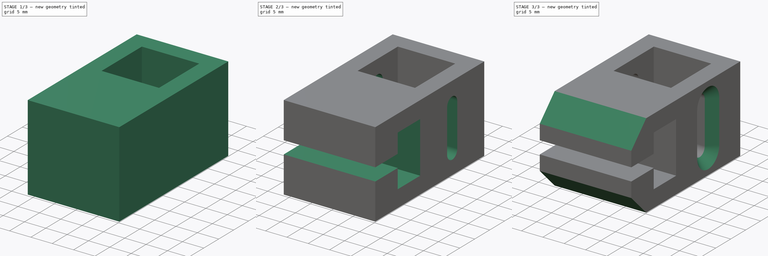
[diagram: build sequence overview — one tinted view per stage of 3, left to right]
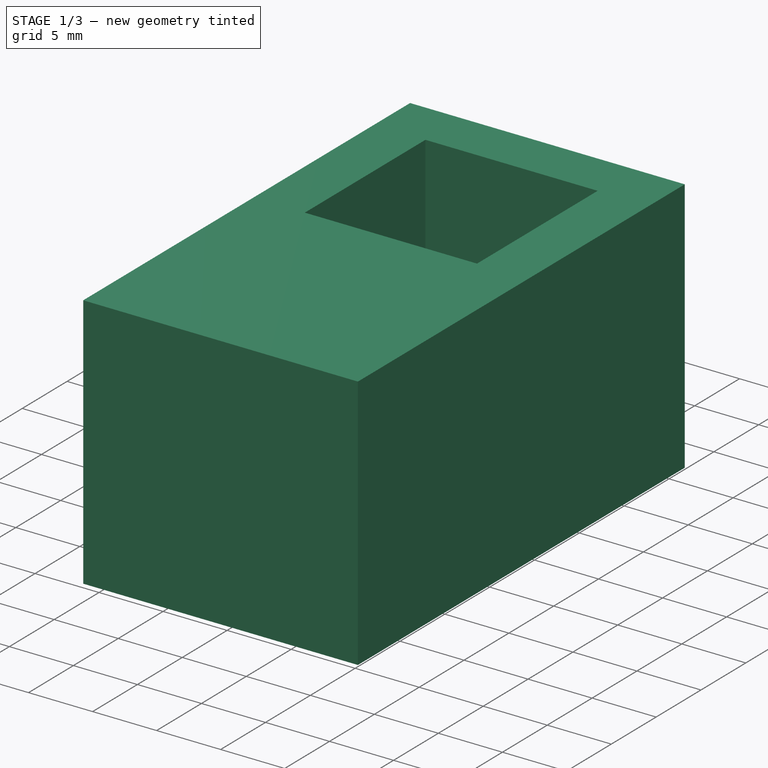
[diagram: stage 1 of 3 — iso view after this stage's code; geometry added in this stage tinted green]
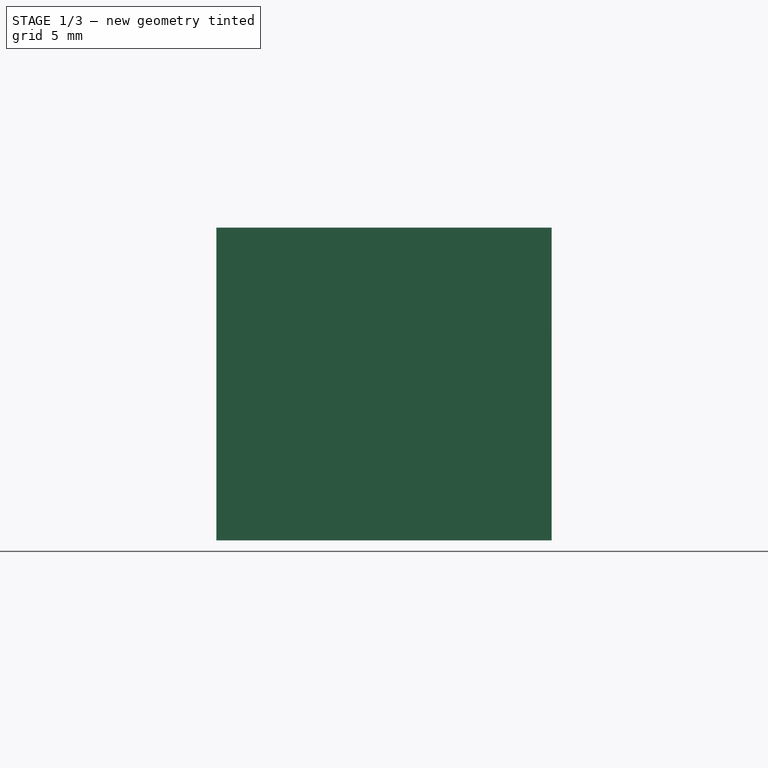
[diagram: stage 1 of 3 — front view after this stage's code; geometry added in this stage tinted green]
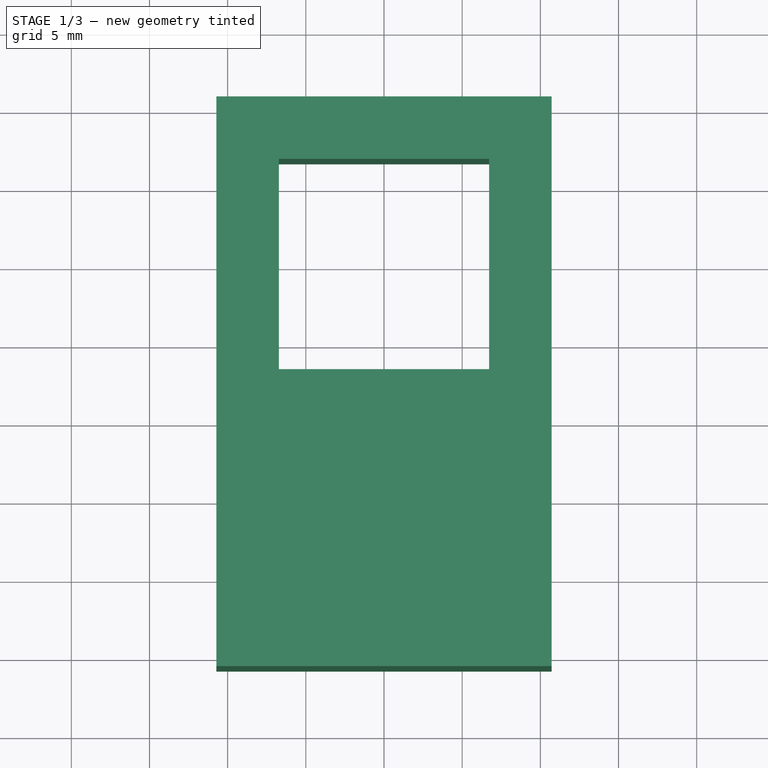
[diagram: stage 1 of 3 — top view after this stage's code; geometry added in this stage tinted green]
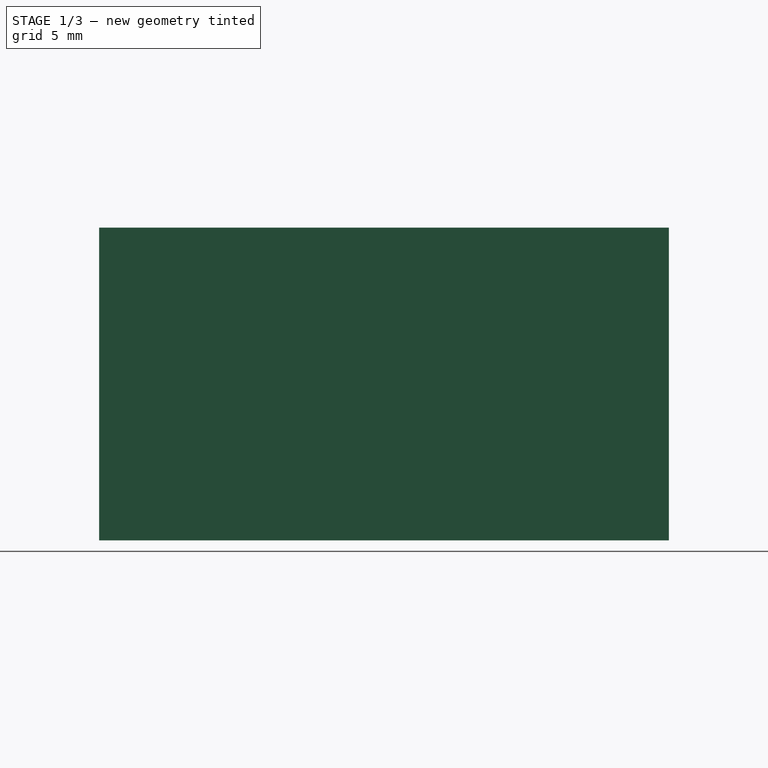
[diagram: stage 1 of 3 — right view after this stage's code; geometry added in this stage tinted green]
FCSTD DOCUMENT  (FreeCAD 0.17R13634 (Git))
Label: ElasticSlider V1
License: All rights reserved
LicenseURL: http://en.wikipedia.org/wiki/All_rights_reserved
objects: Sketcher::SketchObject×4, PartDesign::Pad×2, PartDesign::Pocket×2, PartDesign::Chamfer×2, PartDesign::Body×1
note: 15 computed .brp shape members not serialized (recipe doc carries the construction recipe); baked Part::Feature solids carry a one-line shape summary decoded from their .brp

FEATURE [Sketcher::SketchObject] Sketch  label="Tube"
  MapMode = 5
  Support = -> [XY_Plane]
  sketch-geometry (8):
    g0: LineSegment StartX=-10.725 StartY=10.725 StartZ=0 EndX=10.725 EndY=10.725 EndZ=0
    g1: LineSegment StartX=10.725 StartY=10.725 StartZ=0 EndX=10.725 EndY=-10.725 EndZ=0
    g2: LineSegment StartX=10.725 StartY=-10.725 StartZ=0 EndX=-10.725 EndY=-10.725 EndZ=0
    g3: LineSegment StartX=-10.725 StartY=-10.725 StartZ=0 EndX=-10.725 EndY=10.725 EndZ=0
    g4: LineSegment StartX=-6.725 StartY=6.725 StartZ=0 EndX=6.725 EndY=6.725 EndZ=0
    g5: LineSegment StartX=6.725 StartY=6.725 StartZ=0 EndX=6.725 EndY=-6.725 EndZ=0
    g6: LineSegment StartX=6.725 StartY=-6.725 StartZ=0 EndX=-6.725 EndY=-6.725 EndZ=0
    g7: LineSegment StartX=-6.725 StartY=-6.725 StartZ=0 EndX=-6.725 EndY=6.725 EndZ=0
  constraints (24):
    c: Coincident(g0,g1)
    c: Coincident(g1,g2)
    c: Coincident(g2,g3)
    c: Coincident(g3,g0)
    c: Horizontal(g0)
    c: Horizontal(g2)
    c: Vertical(g1)
    c: Vertical(g3)
    c: Coincident(g4,g5)
    c: Coincident(g5,g6)
    c: Coincident(g6,g7)
    c: Coincident(g7,g4)
    c: Horizontal(g4)
    c: Horizontal(g6)
    c: Vertical(g5)
    c: Vertical(g7)
    c: Symmetric(g0,g0,g-2)
    c: Symmetric(g0,g1,g-1)
    c: Equal(g0,g1)
    c: Symmetric(g4,g4,g-2)
    c: Symmetric(g4,g5,g-1)
    c: Equal(g5,g6)
    c: Distance(g4) = 13.45
    c: DistanceX(g4,g0) = 4
FEATURE [PartDesign::Pad] Pad
  Length = 20
  Length2 = 100
  Profile = -> Sketch
  Type = 0
FEATURE [Sketcher::SketchObject] Sketch001  label="AnchorBase"
  ExternalGeometry = -> [Pad]
  MapMode = 5
  Placement = pos=(0,-10.725,0) rot=(1,0,0;1.5708rad)
  Support = -> [Pad]
  sketch-geometry (7):
    g0: LineSegment [constr] StartX=-10.725 StartY=20 StartZ=0 EndX=10.725 EndY=0 EndZ=0
    g1: LineSegment [constr] StartX=10.725 StartY=20 StartZ=0 EndX=-10.725 EndY=0 EndZ=0
    g2: GeomPoint X=0 Y=10 Z=0
    g3: LineSegment StartX=-10.725 StartY=20 StartZ=0 EndX=10.725 EndY=20 EndZ=0
    g4: LineSegment StartX=10.725 StartY=20 StartZ=0 EndX=10.725 EndY=0 EndZ=0
    g5: LineSegment StartX=10.725 StartY=0 StartZ=0 EndX=-10.725 EndY=0 EndZ=0
    g6: LineSegment StartX=-10.725 StartY=0 StartZ=0 EndX=-10.725 EndY=20 EndZ=0
  constraints (16):
    c: Coincident(g0,g-3)
    c: Coincident(g0,g-4)
    c: Coincident(g1,g-4)
    c: Coincident(g1,g-3)
    c: PointOnObject(g2,g1)
    c: PointOnObject(g2,g0)
    c: Coincident(g3,g4)
    c: Coincident(g4,g5)
    c: Coincident(g5,g6)
    c: Coincident(g6,g3)
    c: Horizontal(g3)
    c: Horizontal(g5)
    c: Vertical(g4)
    c: Vertical(g6)
    c: Coincident(g3,g0)
    c: Coincident(g4,g0)
FEATURE [PartDesign::Pad] Pad001
  BaseFeature = -> Pad
  Length = 15
  Length2 = 100
  Profile = -> Sketch001
  Type = 0
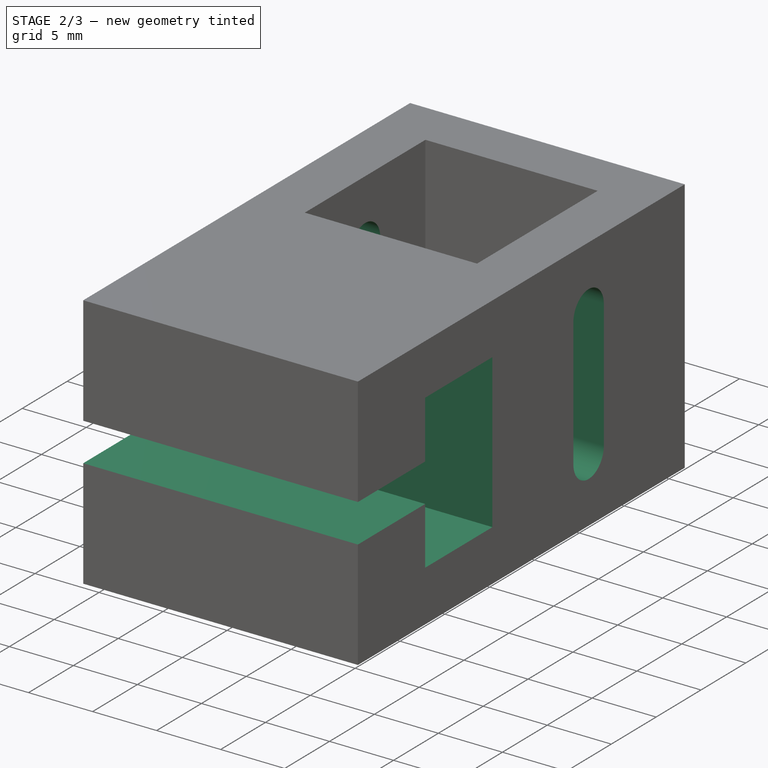
[diagram: stage 2 of 3 — iso view after this stage's code; geometry added in this stage tinted green]
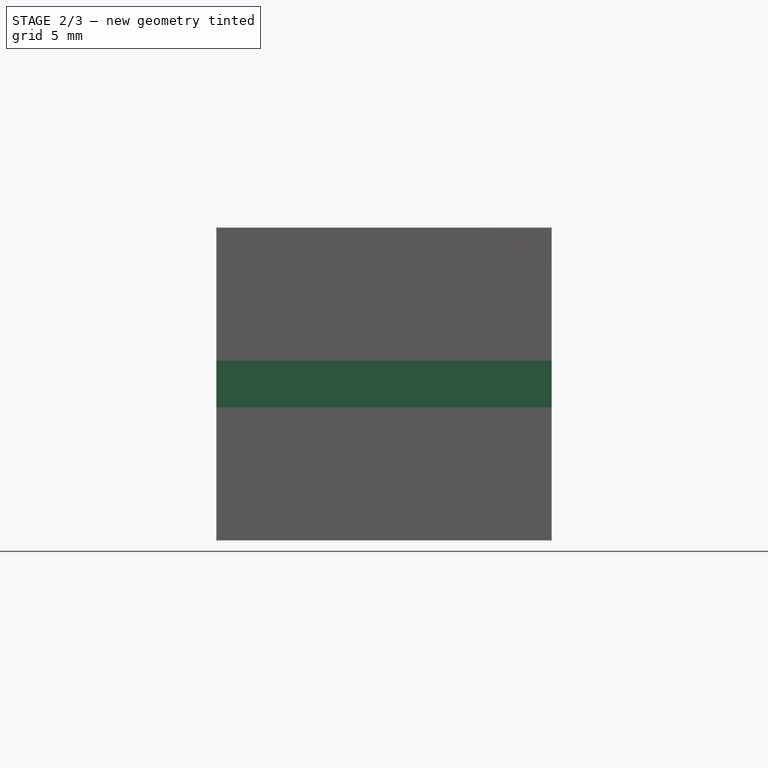
[diagram: stage 2 of 3 — front view after this stage's code; geometry added in this stage tinted green]
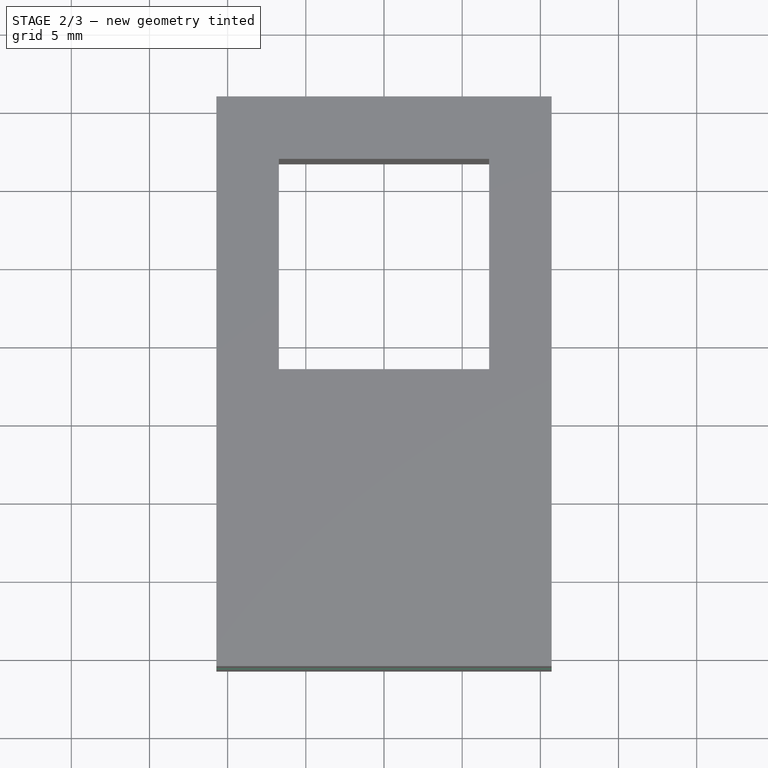
[diagram: stage 2 of 3 — top view after this stage's code; geometry added in this stage tinted green]
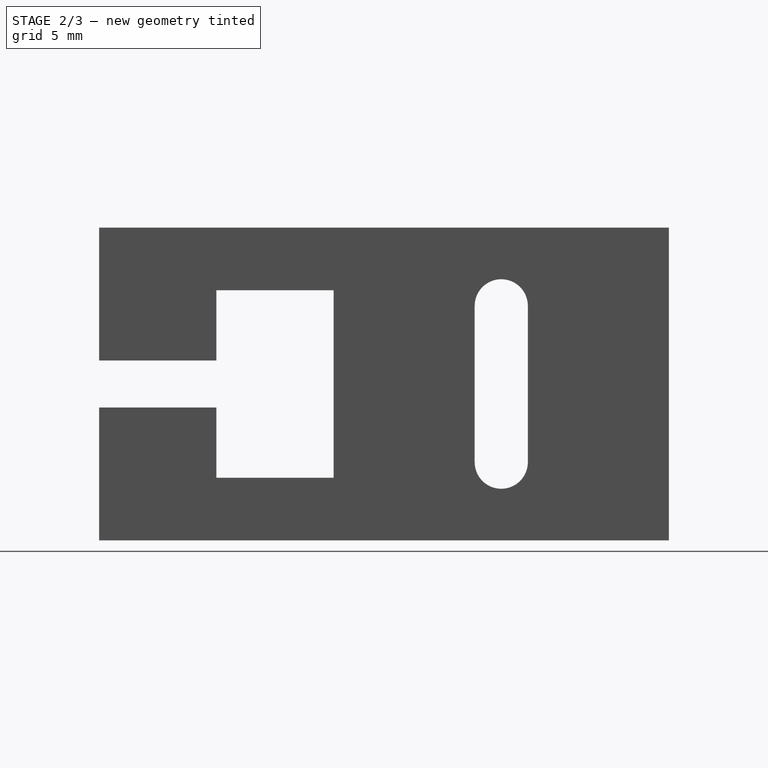
[diagram: stage 2 of 3 — right view after this stage's code; geometry added in this stage tinted green]
FEATURE [Sketcher::SketchObject] Sketch002  label="ElasticSlot"
  ExternalGeometry = -> [Pad001]
  MapMode = 5
  Placement = pos=(-10.725,0,0) rot=(0.57735,-0.57735,-0.57735;2.0944rad)
  Support = -> [Pad001]
  sketch-geometry (10):
    g0: LineSegment StartX=18.225 StartY=11.5 StartZ=0 EndX=25.725 EndY=11.5 EndZ=0
    g1: LineSegment StartX=25.725 StartY=11.5 StartZ=0 EndX=25.725 EndY=8.5 EndZ=0
    g2: LineSegment StartX=25.725 StartY=8.5 StartZ=0 EndX=18.225 EndY=8.5 EndZ=0
    g3: LineSegment [constr] StartX=18.225 StartY=8.5 StartZ=0 EndX=10.725 EndY=0 EndZ=0
    g4: LineSegment [constr] StartX=18.225 StartY=11.5 StartZ=0 EndX=10.725 EndY=20 EndZ=0
    g5: LineSegment StartX=18.225 StartY=11.5 StartZ=0 EndX=18.225 EndY=16 EndZ=0
    g6: LineSegment StartX=18.225 StartY=16 StartZ=0 EndX=10.725 EndY=16 EndZ=0
    g7: LineSegment StartX=10.725 StartY=16 StartZ=0 EndX=10.725 EndY=4 EndZ=0
    g8: LineSegment StartX=10.725 StartY=4 StartZ=0 EndX=18.225 EndY=4 EndZ=0
    g9: LineSegment StartX=18.225 StartY=4 StartZ=0 EndX=18.225 EndY=8.5 EndZ=0
  constraints (28):
    c: Coincident(g0,g1)
    c: Coincident(g1,g2)
    c: Horizontal(g0)
    c: Horizontal(g2)
    c: Vertical(g1)
    c: PointOnObject(g1,g-5)
    c: Coincident(g3,g2)
    c: Coincident(g3,g-4)
    c: Coincident(g4,g0)
    c: Coincident(g4,g-4)
    c: Equal(g3,g4)
    c: Distance(g1) = 3
    c: DistanceX(g2,g0) = 0
    c: Coincident(g0,g5)
    c: Vertical(g5)
    c: Coincident(g5,g6)
    c: PointOnObject(g6,g-4)
    c: Horizontal(g6)
    c: Coincident(g6,g7)
    c: Vertical(g7)
    c: Coincident(g7,g8)
    c: Horizontal(g8)
    c: Coincident(g8,g9)
    c: Coincident(g9,g2)
    c: Vertical(g9)
    c: Equal(g9,g5)
    c: DistanceY(g6,g4) = 4
    c: DistanceX(g5,g-5) = 7.5
FEATURE [PartDesign::Pocket] Pocket
  BaseFeature = -> Pad001
  Length = 5
  Length2 = 100
  Profile = -> Sketch002
  Type = 1
FEATURE [Sketcher::SketchObject] Sketch003  label="SetScrewSlot"
  ExternalGeometry = -> [Pocket]
  MapMode = 5
  Placement = pos=(-10.725,0,0) rot=(0.57735,-0.57735,-0.57735;2.0944rad)
  Support = -> [Pocket]
  sketch-geometry (6):
    g0: ArcOfCircle CenterX=0 CenterY=15 CenterZ=0 NormalX=0 NormalY=0 NormalZ=1 AngleXU=0 Radius=1.7 StartAngle=0 EndAngle=3.14159
    g1: ArcOfCircle CenterX=0 CenterY=5 CenterZ=0 NormalX=0 NormalY=0 NormalZ=1 AngleXU=0 Radius=1.7 StartAngle=3.14159 EndAngle=6.28319
    g2: LineSegment StartX=-1.7 StartY=15 StartZ=0 EndX=-1.7 EndY=5 EndZ=0
    g3: LineSegment StartX=1.7 StartY=15 StartZ=0 EndX=1.7 EndY=5 EndZ=0
    g4: LineSegment [constr] StartX=0 StartY=5 StartZ=0 EndX=10.725 EndY=0 EndZ=0
    g5: LineSegment [constr] StartX=10.725 StartY=20 StartZ=0 EndX=0 EndY=15 EndZ=0
  constraints (14):
    c: Tangent(g0,g3) = 1.5708
    c: Tangent(g0,g2) = -1.5708
    c: Tangent(g2,g1) = -1.5708
    c: Tangent(g3,g1) = 1.5708
    c: Vertical(g2)
    c: Equal(g0,g1)
    c: PointOnObject(g0,g-2)
    c: Coincident(g4,g1)
    c: Coincident(g4,g-4)
    c: Coincident(g5,g-3)
    c: Coincident(g5,g0)
    c: Equal(g4,g5)
    c: Radius(g1) = 1.7
    c: Distance(g1,g0) = 10
FEATURE [PartDesign::Pocket] Pocket001
  BaseFeature = -> Pocket
  Length = 5
  Length2 = 100
  Profile = -> Sketch003
  Type = 1
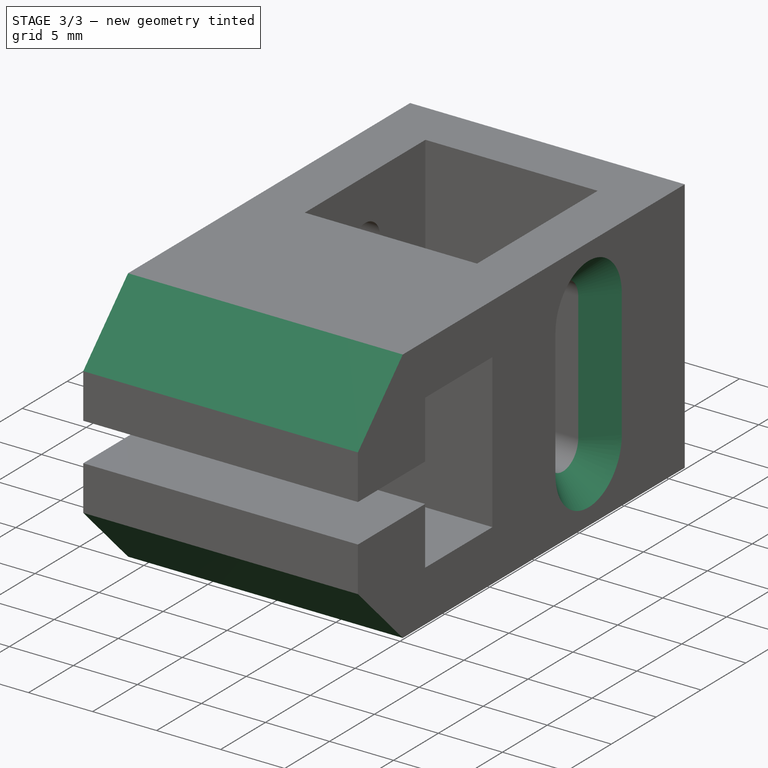
[diagram: stage 3 of 3 — iso view after this stage's code; geometry added in this stage tinted green]
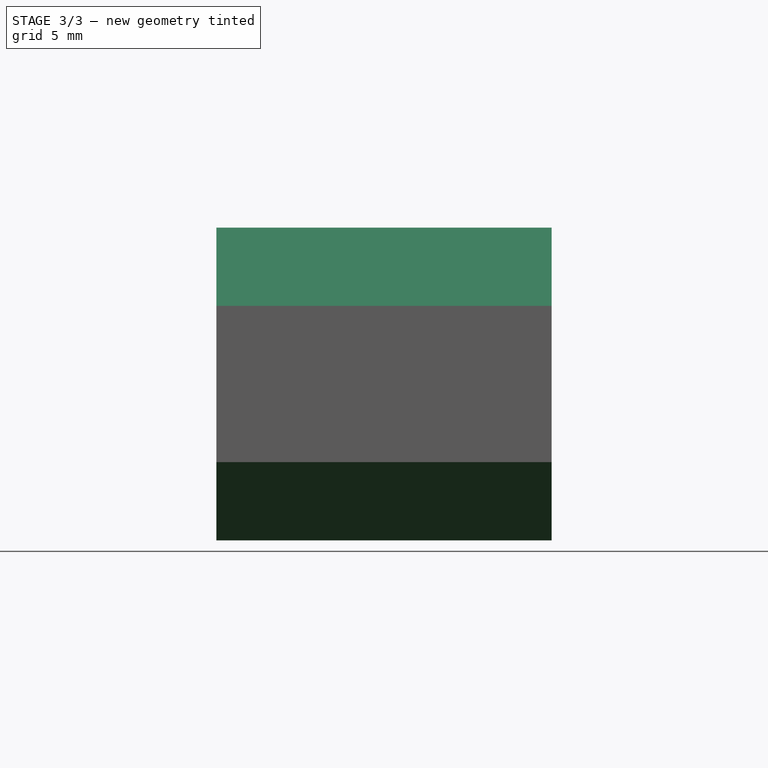
[diagram: stage 3 of 3 — front view after this stage's code; geometry added in this stage tinted green]
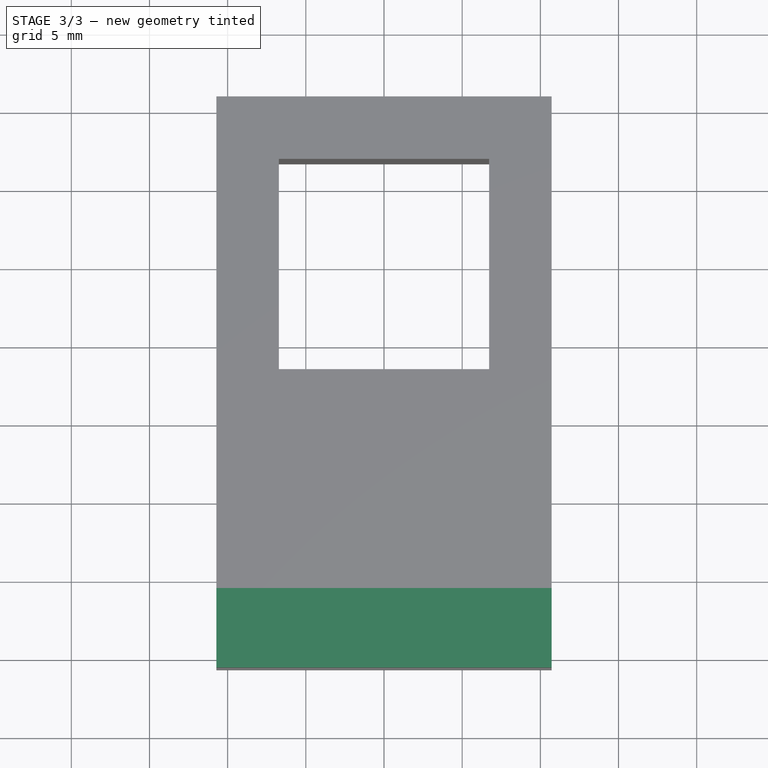
[diagram: stage 3 of 3 — top view after this stage's code; geometry added in this stage tinted green]
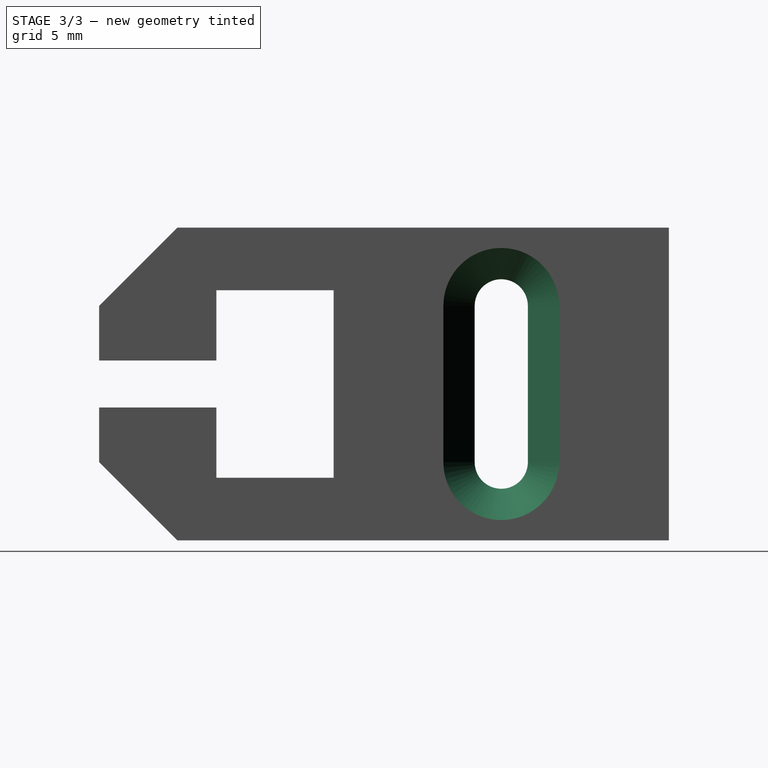
[diagram: stage 3 of 3 — right view after this stage's code; geometry added in this stage tinted green]
FEATURE [PartDesign::Chamfer] Chamfer
  Base = -> Pocket001 [Edge13,Edge11,Edge12,Edge10,Edge20,Edge22,Edge19,Edge21]
  BaseFeature = -> Pocket001
  Size = 2
FEATURE [PartDesign::Chamfer] Chamfer001
  Base = -> Chamfer [Edge61,Edge80]
  BaseFeature = -> Chamfer
  Size = 5
FEATURE [PartDesign::Body] Body
  Group = -> [Sketch,Pad,Sketch001,Pad001,Sketch002,Pocket,Sketch003,Pocket001,Chamfer,Chamfer001]
  Origin = -> Origin
  Tip = -> Chamfer001
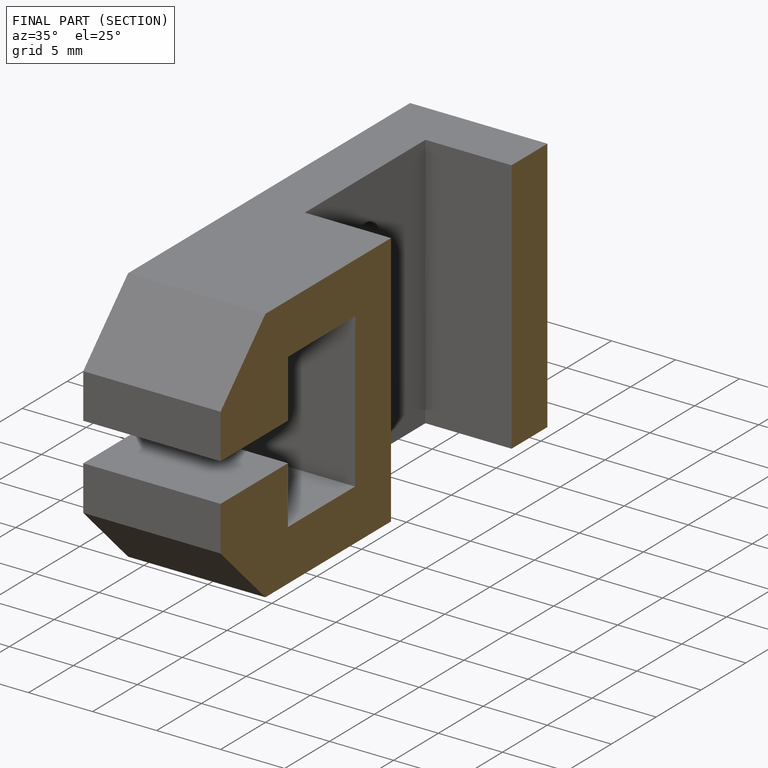
[diagram: finished part — half-section view (interior)]
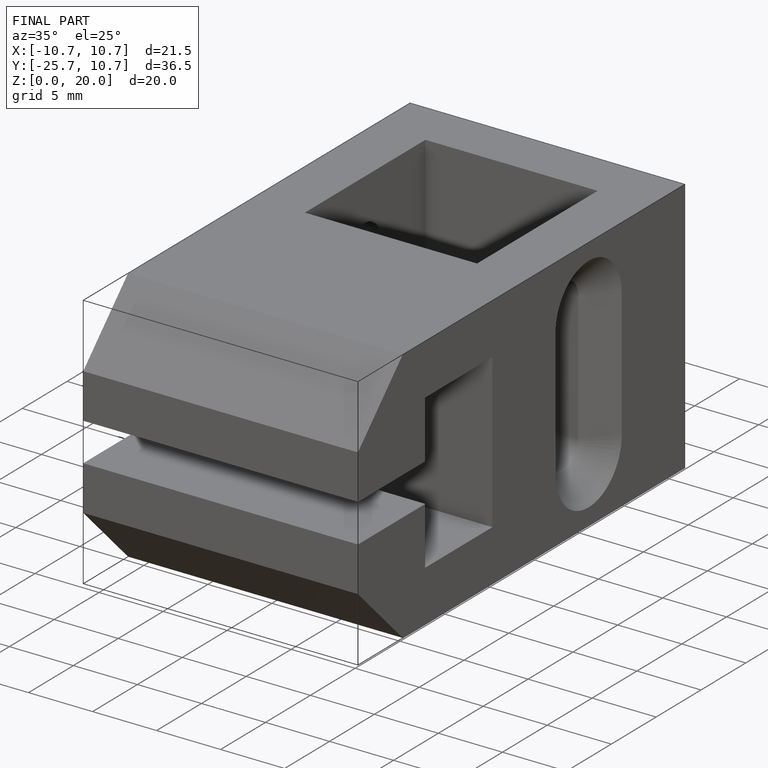
[diagram: finished part — iso view with bounding-box wireframe]
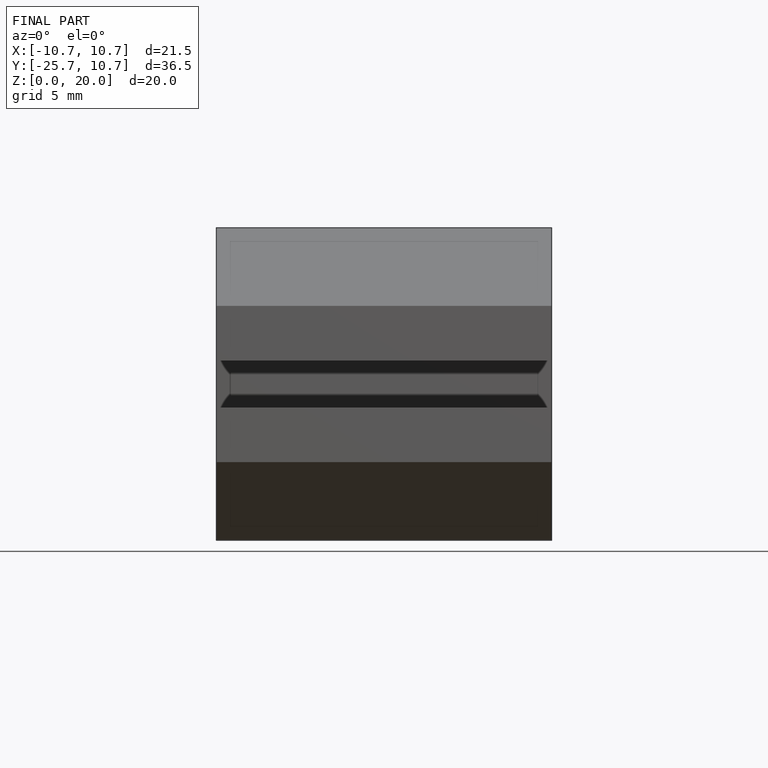
[diagram: finished part — front view with bounding-box wireframe]
